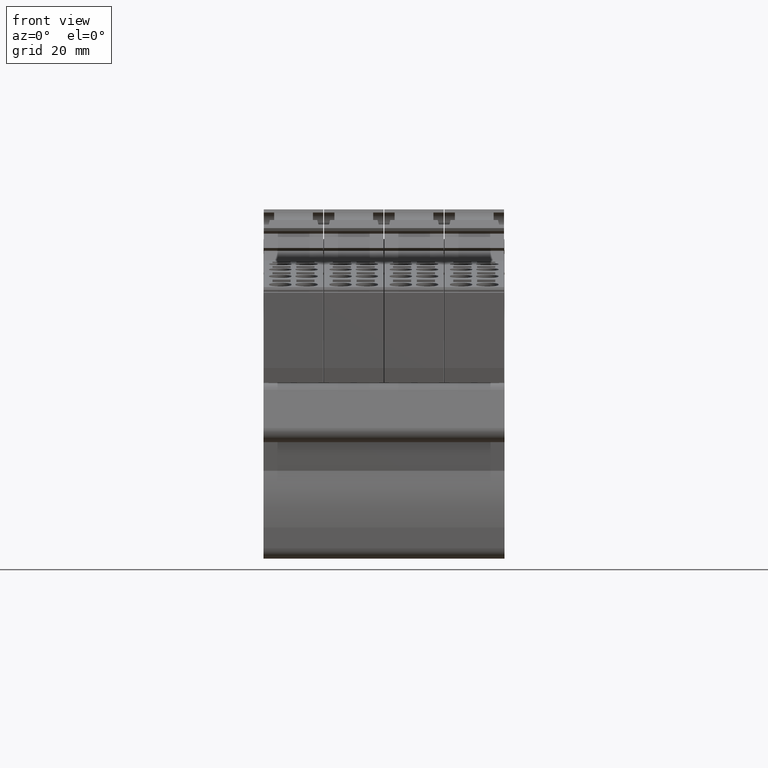
[diagram: clean part render]
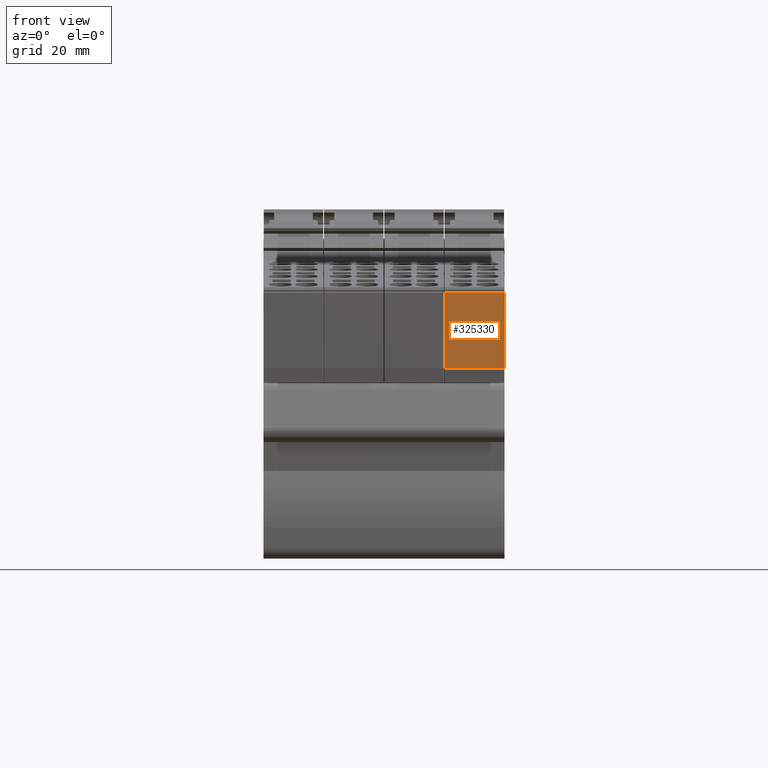
[diagram: same view with one face highlighted and labeled with its STEP entity id]
A machine part, front view. The second image highlights one B-rep face of the part: STEP entity #325330.
In plain terms, the highlighted planar face has unit normal (0, -1, -0).
Its self-contained STEP definition (entity closure, byte-faithful):
#224970=CARTESIAN_POINT('',(13.1829347668366,67.701244428714,-47.425));
#224980=VERTEX_POINT('',#224970);
#225010=CARTESIAN_POINT('',(13.1829347668366,60.0230590239077,-47.425));
#225020=DIRECTION('',(8.32667268468867E-17,-1.,-1.38777878078145E-17));
#225030=VECTOR('',#225020,1.);
#225040=LINE('',#225010,#225030);
#225050=CARTESIAN_POINT('',(13.1829347668366,52.4942181245001,-47.425));
#225060=VERTEX_POINT('',#225050);
#225070=EDGE_CURVE('',#224980,#225060,#225040,.T.);
#229960=CARTESIAN_POINT('',(13.1829347668366,52.4942181245001,-35.425));
#229970=VERTEX_POINT('',#229960);
#230000=CARTESIAN_POINT('',(13.1829347668366,60.0230590239077,-35.425));
#230010=DIRECTION('',(8.32667268468867E-17,-1.,-1.38777878078145E-17));
#230020=VECTOR('',#230010,1.);
#230030=LINE('',#230000,#230020);
#230040=CARTESIAN_POINT('',(13.1829347668366,67.701244428714,-35.425));
#230050=VERTEX_POINT('',#230040);
#230060=EDGE_CURVE('',#230050,#229970,#230030,.T.);
#325010=CARTESIAN_POINT('',(13.1829347668366,67.701244428714,-35.425));
#325020=DIRECTION('',(-8.85927774418128E-33,0.,1.));
#325030=VECTOR('',#325020,1.);
#325040=LINE('',#325010,#325030);
#325050=EDGE_CURVE('',#224980,#230050,#325040,.T.);
#325170=CARTESIAN_POINT('',(13.1829347668366,67.701244428714,-35.425));
#325180=DIRECTION('',(-1.,-1.11022302462516E-16,-8.85927774418128E-33));
#325190=DIRECTION('',(-1.11022302462516E-16,1.,0.));
#325200=AXIS2_PLACEMENT_3D('',#325170,#325180,#325190);
#325210=PLANE('',#325200);
#325220=CARTESIAN_POINT('',(13.1829347668366,52.4942181245003,-35.425));
#325230=DIRECTION('',(8.85927774418128E-33,0.,-1.));
#325240=VECTOR('',#325230,1.);
#325250=LINE('',#325220,#325240);
#325260=EDGE_CURVE('',#229970,#225060,#325250,.T.);
#325270=ORIENTED_EDGE('',*,*,#325260,.F.);
#325280=ORIENTED_EDGE('',*,*,#225070,.T.);
#325290=ORIENTED_EDGE('',*,*,#325050,.F.);
#325300=ORIENTED_EDGE('',*,*,#230060,.F.);
#325310=EDGE_LOOP('',(#325300,#325290,#325280,#325270));
#325320=FACE_OUTER_BOUND('',#325310,.T.);
#325330=ADVANCED_FACE('',(#325320),#325210,.T.);